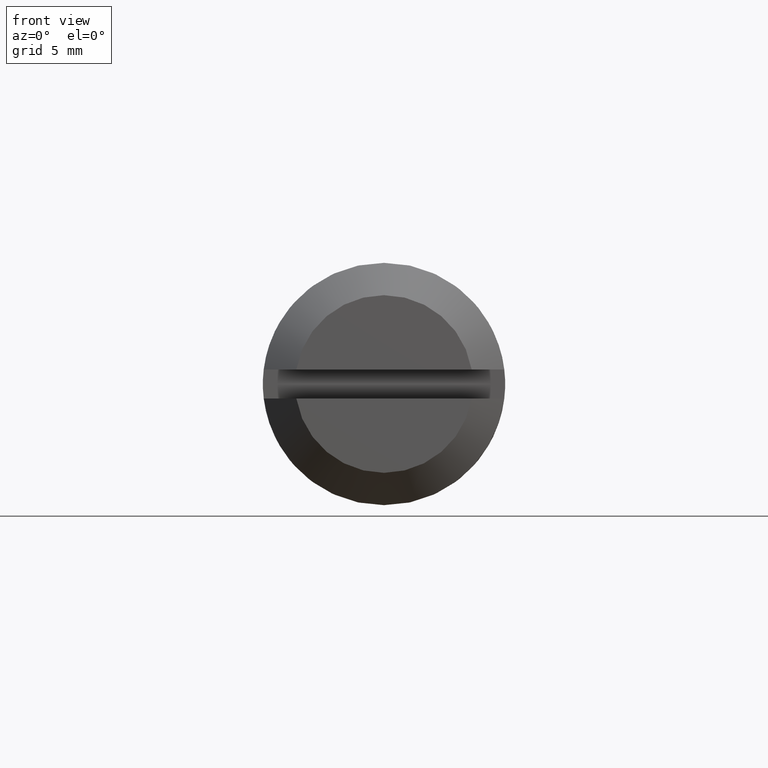
[diagram: clean part render]
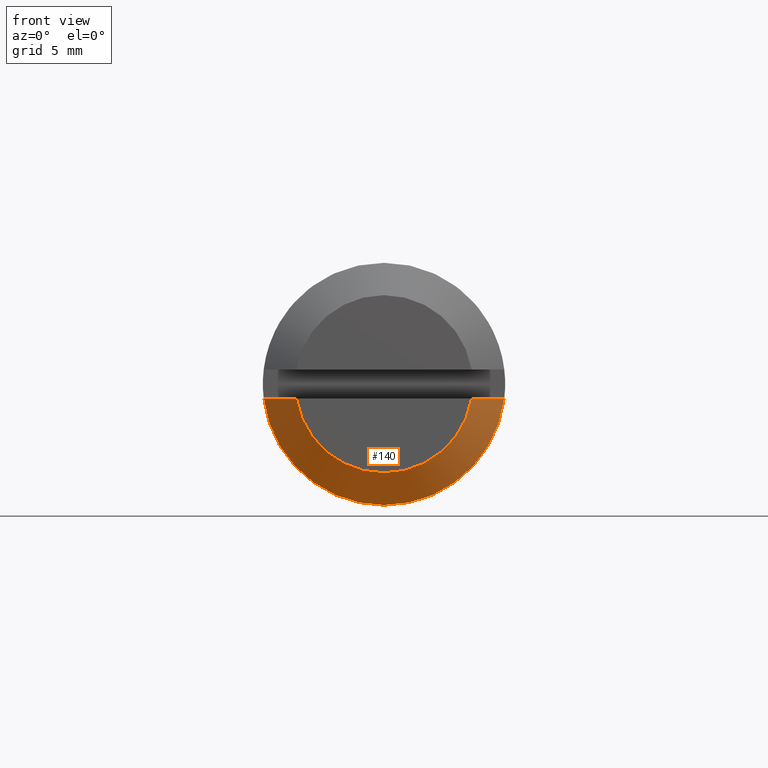
[diagram: same view with one face highlighted and labeled with its STEP entity id]
A machine part, front view. The second image highlights one B-rep face of the part: STEP entity #140.
In plain terms, the highlighted face is a freeform B-spline surface patch.
Its self-contained STEP definition (entity closure, byte-faithful):
#140=ADVANCED_FACE('',(#440),#439,.T.);
#439=( BOUNDED_SURFACE() B_SPLINE_SURFACE( 2,1,((#724,#725),(#726,#727),(#728,#729),(#730,#731),(#732,#733)), .UNSPECIFIED.,.F.,.F.,.F.) B_SPLINE_SURFACE_WITH_KNOTS((3,2,3),(2,2),(0.00000000000E+00,5.00000000000E-01,1.00000000000E+00),(0.00000000000E+00,1.00000000000E+00), .UNSPECIFIED. ) GEOMETRIC_REPRESENTATION_ITEM() RATIONAL_B_SPLINE_SURFACE(((1.00000000000E+00,1.00000000000E+00),(7.48305015444E-01,7.48305015444E-01),(1.00000000000E+00,1.00000000000E+00),(7.48305015444E-01,7.48305015444E-01),(1.00000000000E+00,1.00000000000E+00))) REPRESENTATION_ITEM('') SURFACE() );
#440=FACE_OUTER_BOUND('',#734,.T.);
#724=CARTESIAN_POINT('',(-1.00004377704E+01,-5.45977515469E+00,-6.59499867385E-01));
#725=CARTESIAN_POINT('',(-7.99936222961E+00,-7.44640985898E+00,-8.99470431538E-01));
#726=CARTESIAN_POINT('',(-1.00004377704E+01,-4.87514402146E+00,-5.49946222934E+00));
#727=CARTESIAN_POINT('',(-7.99936222961E+00,-6.64905046029E+00,-7.50053777003E+00));
#728=CARTESIAN_POINT('',(-1.00004377704E+01,-2.98911340124E-10,-5.49946222961E+00));
#729=CARTESIAN_POINT('',(-7.99936222961E+00,-4.07675670999E-10,-7.50053777039E+00));
#730=CARTESIAN_POINT('',(-1.00004377704E+01,4.87514402087E+00,-5.49946222987E+00));
#731=CARTESIAN_POINT('',(-7.99936222961E+00,6.64905045947E+00,-7.50053777075E+00));
#732=CARTESIAN_POINT('',(-1.00004377704E+01,5.45977515462E+00,-6.59499867979E-01));
#733=CARTESIAN_POINT('',(-7.99936222961E+00,7.44640985888E+00,-8.99470432347E-01));
#734=EDGE_LOOP('',(#966,#967,#968,#969,#970));
#966=ORIENTED_EDGE('',*,*,#1102,.T.);
#967=ORIENTED_EDGE('',*,*,#1081,.F.);
#968=ORIENTED_EDGE('',*,*,#1103,.T.);
#969=ORIENTED_EDGE('',*,*,#1104,.T.);
#970=ORIENTED_EDGE('',*,*,#1105,.T.);
#1081=EDGE_CURVE('',#1484,#1485,#1492,.T.);
#1102=EDGE_CURVE('',#1623,#1485,#1636,.T.);
#1103=EDGE_CURVE('',#1484,#1616,#1642,.T.);
#1104=EDGE_CURVE('',#1616,#1648,#1649,.T.);
#1105=EDGE_CURVE('',#1648,#1623,#1655,.T.);
#1484=VERTEX_POINT('',#1991);
#1485=VERTEX_POINT('',#1992);
#1492=CIRCLE('',#1999,5.50000000000E+00);
#1616=VERTEX_POINT('',#2082);
#1623=VERTEX_POINT('',#2087);
#1636=(BOUNDED_CURVE() B_SPLINE_CURVE(3,(#2095,#2096,#2097,#2098),.UNSPECIFIED.,.F.,.F.) B_SPLINE_CURVE_WITH_KNOTS((4,4),(1.27287149362E-02,1.55712763781E-02),.UNSPECIFIED.) CURVE() GEOMETRIC_REPRESENTATION_ITEM() RATIONAL_B_SPLINE_CURVE((1.00000000000E+00,1.00000000000E+00,1.00000000000E+00,1.00000000000E+00)) REPRESENTATION_ITEM('') );
#1642=(BOUNDED_CURVE() B_SPLINE_CURVE(3,(#2099,#2100,#2101,#2102),.UNSPECIFIED.,.F.,.F.) B_SPLINE_CURVE_WITH_KNOTS((4,4),(2.99411617818E-02,3.27847412295E-02),.UNSPECIFIED.) CURVE() GEOMETRIC_REPRESENTATION_ITEM() RATIONAL_B_SPLINE_CURVE((1.00000000000E+00,1.00000000000E+00,1.00000000000E+00,1.00000000000E+00)) REPRESENTATION_ITEM('') );
#1648=VERTEX_POINT('',#2103);
#1649=CIRCLE('',#2107,7.50000000000E+00);
#1655=CIRCLE('',#2111,7.50000000000E+00);
#1991=CARTESIAN_POINT('',(-9.99990000000E+00,5.42586398650E+00,-9.00000000000E-01));
#1992=CARTESIAN_POINT('',(-9.99990000000E+00,-5.42586398650E+00,-9.00000000000E-01));
#1996=CARTESIAN_POINT('',(-9.99990000000E+00,0.00000000000E+00,0.00000000000E+00));
#1997=DIRECTION('',(-1.00000000000E+00,0.00000000000E+00,0.00000000000E+00));
#1998=DIRECTION('',(-0.00000000000E+00,9.86520724818E-01,-1.63636363636E-01));
#1999=AXIS2_PLACEMENT_3D('',#1996,#1997,#1998);
#2082=CARTESIAN_POINT('',(-7.99990000000E+00,7.44580418759E+00,-9.00000000000E-01));
#2087=CARTESIAN_POINT('',(-7.99990000000E+00,-7.44580418759E+00,-9.00000000000E-01));
#2095=CARTESIAN_POINT('',(-7.99990000000E+00,-7.44580418759E+00,-9.00000000000E-01));
#2096=CARTESIAN_POINT('',(-8.66746443278E+00,-6.77338075022E+00,-9.00000000000E-01));
#2097=CARTESIAN_POINT('',(-9.33446139654E+00,-6.10039477610E+00,-9.00000000000E-01));
#2098=CARTESIAN_POINT('',(-9.99990000000E+00,-5.42586398650E+00,-9.00000000000E-01));
#2099=CARTESIAN_POINT('',(-9.99990000000E+00,5.42586398650E+00,-9.00000000000E-01));
#2100=CARTESIAN_POINT('',(-9.33446199411E+00,6.10039417036E+00,-9.00000000000E-01));
#2101=CARTESIAN_POINT('',(-8.66746487103E+00,6.77338030878E+00,-9.00000000000E-01));
#2102=CARTESIAN_POINT('',(-7.99990000000E+00,7.44580418759E+00,-9.00000000000E-01));
#2103=CARTESIAN_POINT('',(-7.99990000000E+00,-1.86247738531E-06,-7.50000000000E+00));
#2104=CARTESIAN_POINT('',(-7.99990000000E+00,0.00000000000E+00,0.00000000000E+00));
#2105=DIRECTION('',(-1.00000000000E+00,0.00000000000E+00,0.00000000000E+00));
#2106=DIRECTION('',(-0.00000000000E+00,9.92773891679E-01,-1.20000000000E-01));
#2107=AXIS2_PLACEMENT_3D('',#2104,#2105,#2106);
#2108=CARTESIAN_POINT('',(-7.99990000000E+00,0.00000000000E+00,0.00000000000E+00));
#2109=DIRECTION('',(-1.00000000000E+00,0.00000000000E+00,0.00000000000E+00));
#2110=DIRECTION('',(-0.00000000000E+00,9.92773891679E-01,-1.20000000000E-01));
#2111=AXIS2_PLACEMENT_3D('',#2108,#2109,#2110);